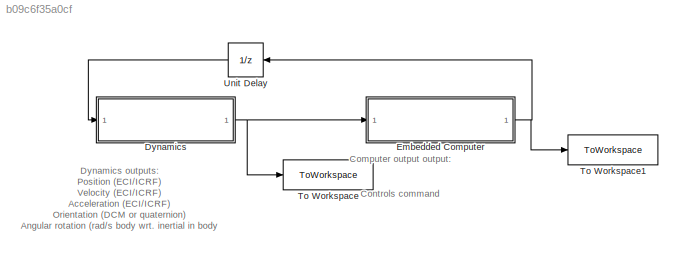
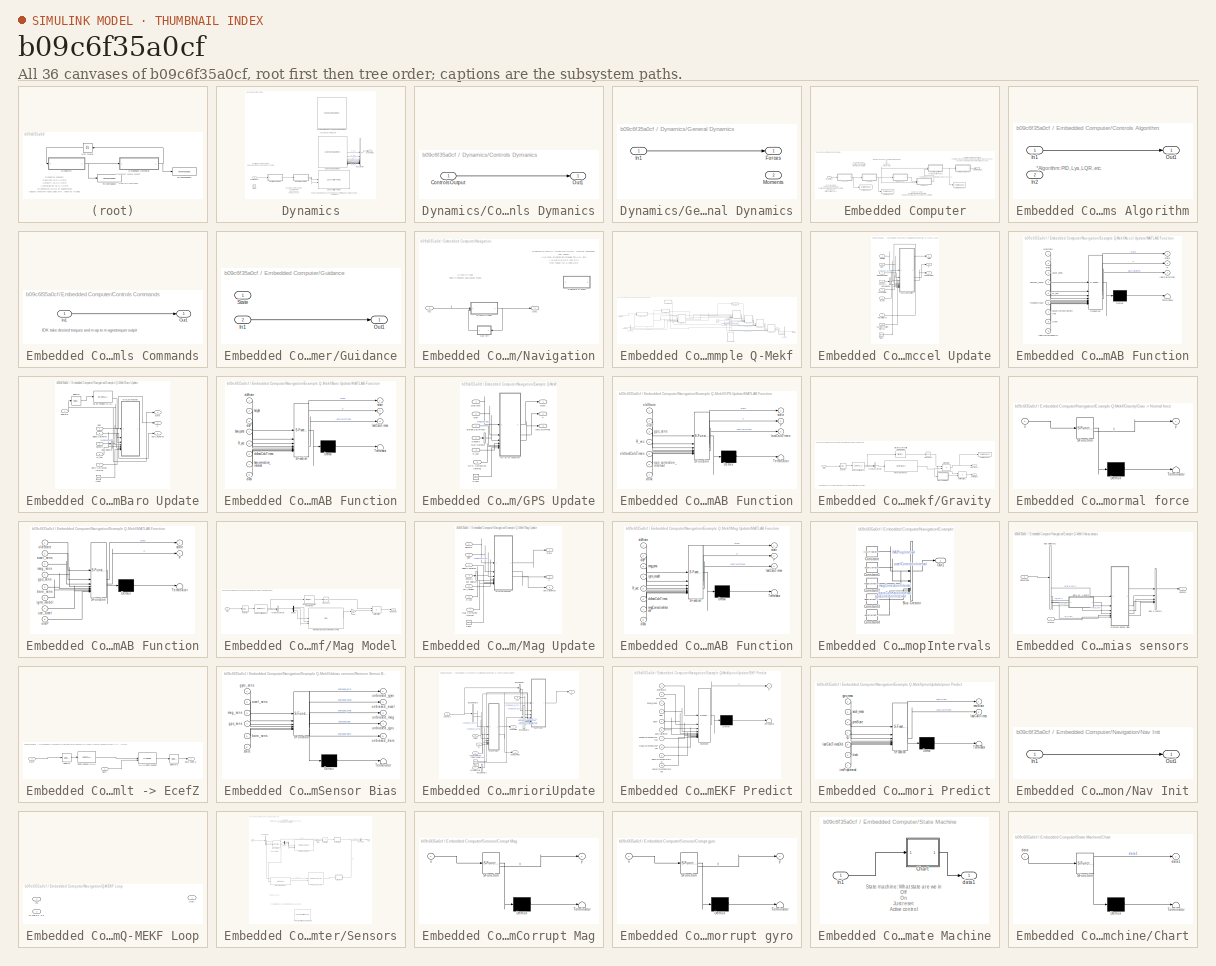
[diagram: thumbnail index - all 36 canvases of the model, root first then tree order]
MODEL slx_b09c6f35a0cf
KIND model
CONFIG AbsTol = auto
CONFIG EnableMultiTasking = off
CONFIG FixedStep = auto
CONFIG MaxStep = auto
CONFIG MinStep = auto
CONFIG RelTol = 1e-3
CONFIG SampleTimeConstraint = Unconstrained
CONFIG SolverName = VariableStepAuto
CONFIG StartTime = 0.0
CONFIG StopTime = 10.0
BLOCK [SubSystem] Dynamics
BLOCK [Reference] Dynamics/6DOF ECEF (Quaternion)  REF=aerolib6dof2/6DOF ECEF (Quaternion)
  SourceBlock = aerolib6dof2/6DOF ECEF (Quaternion)
  SourceType = 6DOF EoM (ECEF)
BLOCK [BusCreator] Dynamics/Bus Creator
  DisplayOption = bar
  InheritFromInputs = on
  Inputs = 12
BLOCK [Clock] Dynamics/Clock
BLOCK [SubSystem] Dynamics/Controls Dymanics
BLOCK [Inport] Dynamics/Controls Dymanics/Controls Output
BLOCK [Outport] Dynamics/Controls Dymanics/Out1
BLOCK [Inport] Dynamics/Controls input
BLOCK [Reference] Dynamics/Custom Variable Mass 6DOF ECEF (Quaternion)  REF=aerolib6dof2/6DOF ECEF (Quaternion)
  LibrarySourceBlock = aerolib6dof2/Custom Variable Mass 6DOF\nECEF (Quaternion)
  SourceBlock = aerolib6dof2/6DOF ECEF (Quaternion)
  SourceType = 6DOF EoM (ECEF)
BLOCK [Outport] Dynamics/Dyanamics
BLOCK [SubSystem] Dynamics/General Dynamics
BLOCK [Outport] Dynamics/General Dynamics/Forces
BLOCK [Inport] Dynamics/General Dynamics/In1
BLOCK [Outport] Dynamics/General Dynamics/Moments
  Port = 2
BLOCK [SpacecraftDynamics] Dynamics/Spacecraft Dynamics
  outputAngAccel = on
  outputTransform = on
BLOCK [SubSystem] Embedded Computer
BLOCK [SubSystem] Embedded Computer/Controls Algorithm
BLOCK [Inport] Embedded Computer/Controls Algorithm/In1
BLOCK [Inport] Embedded Computer/Controls Algorithm/In2
  Port = 2
BLOCK [Outport] Embedded Computer/Controls Algorithm/Out1
BLOCK [SubSystem] Embedded Computer/Controls Commands
BLOCK [Inport] Embedded Computer/Controls Commands/In1
BLOCK [Outport] Embedded Computer/Controls Commands/Out1
BLOCK [Outport] Embedded Computer/Controls Output
BLOCK [Inport] Embedded Computer/Dynamics
BLOCK [SubSystem] Embedded Computer/Guidance
BLOCK [Inport] Embedded Computer/Guidance/In1
  Port = 2
BLOCK [Outport] Embedded Computer/Guidance/Out1
BLOCK [Inport] Embedded Computer/Guidance/State
BLOCK [SubSystem] Embedded Computer/Navigation
BLOCK [SubSystem] Embedded Computer/Navigation/Example Q-Mekf
  Commented = on
BLOCK [SubSystem] Embedded Computer/Navigation/Example Q-Mekf/Accel Update
BLOCK [Inport] Embedded Computer/Navigation/Example Q-Mekf/Accel Update/Accel Correction Interval
  Port = 8
BLOCK [BusSelector] Embedded Computer/Navigation/Example Q-Mekf/Accel Update/Bus Selector
  OutputSignals = unbiased_accel
BLOCK [Clock] Embedded Computer/Navigation/Example Q-Mekf/Accel Update/Clock
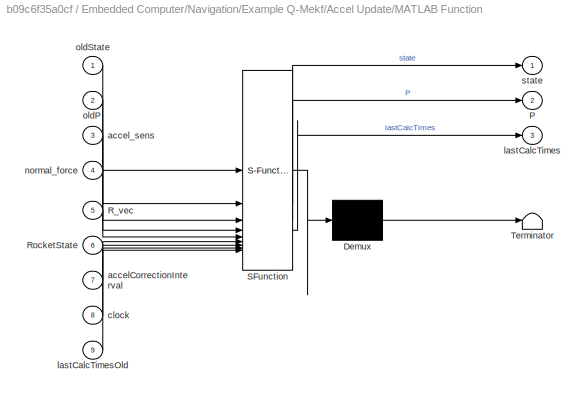
BLOCK [SubSystem] Embedded Computer/Navigation/Example Q-Mekf/Accel Update/MATLAB Function
  ErrorFcn = Stateflow.Translate.translate
  PermitHierarchicalResolution = ExplicitOnly
  SFBlockType = MATLAB Function
  TreatAsAtomicUnit = on
BLOCK [Demux] Embedded Computer/Navigation/Example Q-Mekf/Accel Update/MATLAB Function/ Demux 
  Outputs = 1
BLOCK [S-Function] Embedded Computer/Navigation/Example Q-Mekf/Accel Update/MATLAB Function/ SFunction 
  EnableBusSupport = off
  FunctionName = sf_sfun
  PortCounts = [9 4]
  SFcnIsStateOwnerBlock = off
  SFunctionDeploymentMode = off
  Tag = Stateflow S-Function 52
BLOCK [Terminator] Embedded Computer/Navigation/Example Q-Mekf/Accel Update/MATLAB Function/ Terminator 
BLOCK [Outport] Embedded Computer/Navigation/Example Q-Mekf/Accel Update/MATLAB Function/P
  Port = 2
BLOCK [Inport] Embedded Computer/Navigation/Example Q-Mekf/Accel Update/MATLAB Function/R_vec
  Port = 5
BLOCK [Inport] Embedded Computer/Navigation/Example Q-Mekf/Accel Update/MATLAB Function/RocketState
  Port = 6
BLOCK [Inport] Embedded Computer/Navigation/Example Q-Mekf/Accel Update/MATLAB Function/accelCorrectionInterval
  Port = 7
BLOCK [Inport] Embedded Computer/Navigation/Example Q-Mekf/Accel Update/MATLAB Function/accel_sens
  Port = 3
BLOCK [Inport] Embedded Computer/Navigation/Example Q-Mekf/Accel Update/MATLAB Function/clock
  Port = 8
BLOCK [Outport] Embedded Computer/Navigation/Example Q-Mekf/Accel Update/MATLAB Function/lastCalcTimes
  Port = 3
BLOCK [Inport] Embedded Computer/Navigation/Example Q-Mekf/Accel Update/MATLAB Function/lastCalcTimesOld
  Port = 9
BLOCK [Inport] Embedded Computer/Navigation/Example Q-Mekf/Accel Update/MATLAB Function/normal_force
  Port = 4
BLOCK [Inport] Embedded Computer/Navigation/Example Q-Mekf/Accel Update/MATLAB Function/oldP
  Port = 2
BLOCK [Inport] Embedded Computer/Navigation/Example Q-Mekf/Accel Update/MATLAB Function/oldState
BLOCK [Outport] Embedded Computer/Navigation/Example Q-Mekf/Accel Update/MATLAB Function/state
BLOCK [Inport] Embedded Computer/Navigation/Example Q-Mekf/Accel Update/Normal force
  Port = 7
BLOCK [Outport] Embedded Computer/Navigation/Example Q-Mekf/Accel Update/P
  Port = 2
BLOCK [Inport] Embedded Computer/Navigation/Example Q-Mekf/Accel Update/R_vec
  Port = 6
BLOCK [Inport] Embedded Computer/Navigation/Example Q-Mekf/Accel Update/RocketState
  Port = 5
BLOCK [Inport] Embedded Computer/Navigation/Example Q-Mekf/Accel Update/Sensors
  Port = 4
BLOCK [Outport] Embedded Computer/Navigation/Example Q-Mekf/Accel Update/lastCalcTimes
  Port = 3
BLOCK [Inport] Embedded Computer/Navigation/Example Q-Mekf/Accel Update/oldP
  Port = 2
BLOCK [Inport] Embedded Computer/Navigation/Example Q-Mekf/Accel Update/oldState
BLOCK [Inport] Embedded Computer/Navigation/Example Q-Mekf/Accel Update/oldlastCalcTimes
  Port = 3
BLOCK [Outport] Embedded Computer/Navigation/Example Q-Mekf/Accel Update/state
BLOCK [SubSystem] Embedded Computer/Navigation/Example Q-Mekf/Baro Update
BLOCK [Inport] Embedded Computer/Navigation/Example Q-Mekf/Baro Update/Baro Correction Interval
  Port = 6
BLOCK [BusSelector] Embedded Computer/Navigation/Example Q-Mekf/Baro Update/Bus Selector
  OutputSignals = unbiased_baro
BLOCK [Clock] Embedded Computer/Navigation/Example Q-Mekf/Baro Update/Clock
BLOCK [ECEF2LLA] Embedded Computer/Navigation/Example Q-Mekf/Baro Update/ECEF Position to LLA
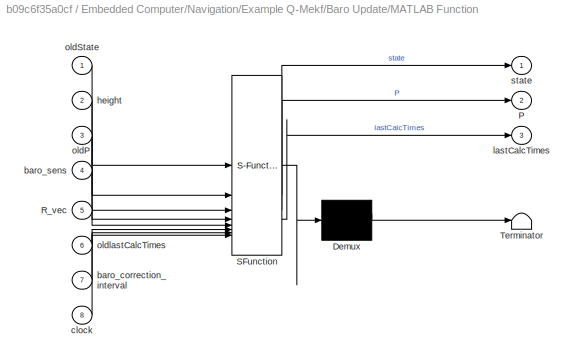
BLOCK [SubSystem] Embedded Computer/Navigation/Example Q-Mekf/Baro Update/MATLAB Function
  Commented = on
  ErrorFcn = Stateflow.Translate.translate
  PermitHierarchicalResolution = ExplicitOnly
  SFBlockType = MATLAB Function
  TreatAsAtomicUnit = on
BLOCK [Demux] Embedded Computer/Navigation/Example Q-Mekf/Baro Update/MATLAB Function/ Demux 
  Outputs = 1
BLOCK [S-Function] Embedded Computer/Navigation/Example Q-Mekf/Baro Update/MATLAB Function/ SFunction 
  EnableBusSupport = off
  FunctionName = sf_sfun
  PortCounts = [8 4]
  SFcnIsStateOwnerBlock = off
  SFunctionDeploymentMode = off
  Tag = Stateflow S-Function 51
BLOCK [Terminator] Embedded Computer/Navigation/Example Q-Mekf/Baro Update/MATLAB Function/ Terminator 
BLOCK [Outport] Embedded Computer/Navigation/Example Q-Mekf/Baro Update/MATLAB Function/P
  Port = 2
BLOCK [Inport] Embedded Computer/Navigation/Example Q-Mekf/Baro Update/MATLAB Function/R_vec
  Port = 5
BLOCK [Inport] Embedded Computer/Navigation/Example Q-Mekf/Baro Update/MATLAB Function/baro_correction_interval
  Port = 7
BLOCK [Inport] Embedded Computer/Navigation/Example Q-Mekf/Baro Update/MATLAB Function/baro_sens
  Port = 4
BLOCK [Inport] Embedded Computer/Navigation/Example Q-Mekf/Baro Update/MATLAB Function/clock
  Port = 8
BLOCK [Inport] Embedded Computer/Navigation/Example Q-Mekf/Baro Update/MATLAB Function/height
  Port = 2
BLOCK [Outport] Embedded Computer/Navigation/Example Q-Mekf/Baro Update/MATLAB Function/lastCalcTimes
  Port = 3
BLOCK [Inport] Embedded Computer/Navigation/Example Q-Mekf/Baro Update/MATLAB Function/oldP
  Port = 3
BLOCK [Inport] Embedded Computer/Navigation/Example Q-Mekf/Baro Update/MATLAB Function/oldState
BLOCK [Inport] Embedded Computer/Navigation/Example Q-Mekf/Baro Update/MATLAB Function/oldlastCalcTimes
  Port = 6
BLOCK [Outport] Embedded Computer/Navigation/Example Q-Mekf/Baro Update/MATLAB Function/state
BLOCK [Outport] Embedded Computer/Navigation/Example Q-Mekf/Baro Update/P
  Port = 2
BLOCK [Inport] Embedded Computer/Navigation/Example Q-Mekf/Baro Update/R_vec
  Port = 5
BLOCK [Selector] Embedded Computer/Navigation/Example Q-Mekf/Baro Update/Selector
  IndexOptions = Index vector (dialog)
  Indices = [8 9 10]
  InputPortWidth = 20
  OutputSizes = 1
BLOCK [Inport] Embedded Computer/Navigation/Example Q-Mekf/Baro Update/Sensors
  Port = 4
BLOCK [Outport] Embedded Computer/Navigation/Example Q-Mekf/Baro Update/lastCalcTimes
  Port = 3
BLOCK [Inport] Embedded Computer/Navigation/Example Q-Mekf/Baro Update/oldP
  Port = 2
BLOCK [Inport] Embedded Computer/Navigation/Example Q-Mekf/Baro Update/oldState
BLOCK [Inport] Embedded Computer/Navigation/Example Q-Mekf/Baro Update/oldlastCalcTimes
  Port = 3
BLOCK [Outport] Embedded Computer/Navigation/Example Q-Mekf/Baro Update/state
BLOCK [BusCreator] Embedded Computer/Navigation/Example Q-Mekf/Bus Creator
  DisplayOption = bar
  InheritFromInputs = on
  Inputs = 3
BLOCK [BusSelector] Embedded Computer/Navigation/Example Q-Mekf/Bus Selector
  OutputSignals = state,P,lastCalcTimes
BLOCK [BusSelector] Embedded Computer/Navigation/Example Q-Mekf/Bus Selector1
  OutputSignals = accelCorrectionInterval,magCorrectionInterval,gpsCorrectionInterval,baroCorrectionInterval
BLOCK [SubSystem] Embedded Computer/Navigation/Example Q-Mekf/GPS Update
BLOCK [BusSelector] Embedded Computer/Navigation/Example Q-Mekf/GPS Update/Bus Selector
  OutputSignals = unbiased_gps
BLOCK [Clock] Embedded Computer/Navigation/Example Q-Mekf/GPS Update/Clock
BLOCK [Inport] Embedded Computer/Navigation/Example Q-Mekf/GPS Update/GPS Correction Interval
  Port = 6
BLOCK [SubSystem] Embedded Computer/Navigation/Example Q-Mekf/GPS Update/MATLAB Function
  ErrorFcn = Stateflow.Translate.translate
  PermitHierarchicalResolution = ExplicitOnly
  SFBlockType = MATLAB Function
  TreatAsAtomicUnit = on
BLOCK [Demux] Embedded Computer/Navigation/Example Q-Mekf/GPS Update/MATLAB Function/ Demux 
  Outputs = 1
BLOCK [S-Function] Embedded Computer/Navigation/Example Q-Mekf/GPS Update/MATLAB Function/ SFunction 
  EnableBusSupport = off
  FunctionName = sf_sfun
  PortCounts = [7 4]
  SFcnIsStateOwnerBlock = off
  SFunctionDeploymentMode = off
  Tag = Stateflow S-Function 38
BLOCK [Terminator] Embedded Computer/Navigation/Example Q-Mekf/GPS Update/MATLAB Function/ Terminator 
BLOCK [Outport] Embedded Computer/Navigation/Example Q-Mekf/GPS Update/MATLAB Function/P
  Port = 2
BLOCK [Inport] Embedded Computer/Navigation/Example Q-Mekf/GPS Update/MATLAB Function/R_vec
  Port = 4
BLOCK [Inport] Embedded Computer/Navigation/Example Q-Mekf/GPS Update/MATLAB Function/clock
  Port = 7
BLOCK [Inport] Embedded Computer/Navigation/Example Q-Mekf/GPS Update/MATLAB Function/gps_correction_interval
  Port = 6
BLOCK [Inport] Embedded Computer/Navigation/Example Q-Mekf/GPS Update/MATLAB Function/gps_sens
  Port = 3
BLOCK [Outport] Embedded Computer/Navigation/Example Q-Mekf/GPS Update/MATLAB Function/lastCalcTimes
  Port = 3
BLOCK [Inport] Embedded Computer/Navigation/Example Q-Mekf/GPS Update/MATLAB Function/oldP
  Port = 2
BLOCK [Inport] Embedded Computer/Navigation/Example Q-Mekf/GPS Update/MATLAB Function/oldState
BLOCK [Inport] Embedded Computer/Navigation/Example Q-Mekf/GPS Update/MATLAB Function/oldlastCalcTimes
  Port = 5
BLOCK [Outport] Embedded Computer/Navigation/Example Q-Mekf/GPS Update/MATLAB Function/state
BLOCK [Outport] Embedded Computer/Navigation/Example Q-Mekf/GPS Update/P
  Port = 2
BLOCK [Inport] Embedded Computer/Navigation/Example Q-Mekf/GPS Update/R_vec
  Port = 5
BLOCK [Inport] Embedded Computer/Navigation/Example Q-Mekf/GPS Update/Sensors
  Port = 4
BLOCK [Outport] Embedded Computer/Navigation/Example Q-Mekf/GPS Update/lastCalcTimes
  Port = 3
BLOCK [Inport] Embedded Computer/Navigation/Example Q-Mekf/GPS Update/oldP
  Port = 2
BLOCK [Inport] Embedded Computer/Navigation/Example Q-Mekf/GPS Update/oldState
BLOCK [Inport] Embedded Computer/Navigation/Example Q-Mekf/GPS Update/oldlastCalcTimes
  Port = 3
BLOCK [Outport] Embedded Computer/Navigation/Example Q-Mekf/GPS Update/state
BLOCK [SubSystem] Embedded Computer/Navigation/Example Q-Mekf/Gravity
BLOCK [Reference] Embedded Computer/Navigation/Example Q-Mekf/Gravity/Direction Cosine Matrix ECEF to NED  REF=aerolibtransform2/Direction Cosine Matrix
ECEF to NED
  SourceBlock = aerolibtransform2/Direction Cosine Matrix\nECEF to NED
  SourceType = DCM ECEF to NED
BLOCK [ECEF2LLA] Embedded Computer/Navigation/Example Q-Mekf/Gravity/ECEF Position to LLA
BLOCK [SubSystem] Embedded Computer/Navigation/Example Q-Mekf/Gravity/Grav -> Normal force
  ErrorFcn = Stateflow.Translate.translate
  PermitHierarchicalResolution = ExplicitOnly
  SFBlockType = MATLAB Function
  TreatAsAtomicUnit = on
BLOCK [Demux] Embedded Computer/Navigation/Example Q-Mekf/Gravity/Grav -> Normal force/ Demux 
  Outputs = 1
BLOCK [S-Function] Embedded Computer/Navigation/Example Q-Mekf/Gravity/Grav -> Normal force/ SFunction 
  EnableBusSupport = off
  FunctionName = sf_sfun
  PortCounts = [1 2]
  SFcnIsStateOwnerBlock = off
  SFunctionDeploymentMode = off
  Tag = Stateflow S-Function 53
BLOCK [Terminator] Embedded Computer/Navigation/Example Q-Mekf/Gravity/Grav -> Normal force/ Terminator 
BLOCK [Inport] Embedded Computer/Navigation/Example Q-Mekf/Gravity/Grav -> Normal force/u
BLOCK [Outport] Embedded Computer/Navigation/Example Q-Mekf/Gravity/Grav -> Normal force/y
BLOCK [Outport] Embedded Computer/Navigation/Example Q-Mekf/Gravity/Grav model
BLOCK [Product] Embedded Computer/Navigation/Example Q-Mekf/Gravity/Matrix Multiply
  Multiplication = Matrix(*)
BLOCK [Product] Embedded Computer/Navigation/Example Q-Mekf/Gravity/Matrix Multiply1
  Multiplication = Matrix(*)
BLOCK [Outport] Embedded Computer/Navigation/Example Q-Mekf/Gravity/Normal force
  Port = 2
BLOCK [Selector] Embedded Computer/Navigation/Example Q-Mekf/Gravity/Selector
  IndexOptions = Index vector (dialog)
  Indices = [8 9 10]
  InputPortWidth = 20
  OutputSizes = 1
BLOCK [ToWorkspace] Embedded Computer/Navigation/Example Q-Mekf/Gravity/To Workspace
  FixptAsFi = on
  MaxDataPoints = inf
  SampleTime = -1
  SaveFormat = Timeseries
  VariableName = abhay_g
BLOCK [Math] Embedded Computer/Navigation/Example Q-Mekf/Gravity/Transpose
  Operator = transpose
BLOCK [Concatenate] Embedded Computer/Navigation/Example Q-Mekf/Gravity/Vector Concatenate
BLOCK [GravityWGS84] Embedded Computer/Navigation/Example Q-Mekf/Gravity/WGS84 Gravity Model  
BLOCK [Inport] Embedded Computer/Navigation/Example Q-Mekf/Gravity/state
BLOCK [SubSystem] Embedded Computer/Navigation/Example Q-Mekf/MATLAB Function
  Commented = on
  ErrorFcn = Stateflow.Translate.translate
  PermitHierarchicalResolution = ExplicitOnly
  SFBlockType = MATLAB Function
  TreatAsAtomicUnit = on
BLOCK [Demux] Embedded Computer/Navigation/Example Q-Mekf/MATLAB Function/ Demux 
  Outputs = 1
BLOCK [S-Function] Embedded Computer/Navigation/Example Q-Mekf/MATLAB Function/ SFunction 
  EnableBusSupport = off
  FunctionName = sf_sfun
  PortCounts = [8 3]
  SFcnIsStateOwnerBlock = off
  SFunctionDeploymentMode = off
  Tag = Stateflow S-Function 35
BLOCK [Terminator] Embedded Computer/Navigation/Example Q-Mekf/MATLAB Function/ Terminator 
BLOCK [Outport] Embedded Computer/Navigation/Example Q-Mekf/MATLAB Function/P
  Port = 2
BLOCK [Inport] Embedded Computer/Navigation/Example Q-Mekf/MATLAB Function/accel_sens
  Port = 2
BLOCK [Inport] Embedded Computer/Navigation/Example Q-Mekf/MATLAB Function/baro_sens
  Port = 5
BLOCK [Inport] Embedded Computer/Navigation/Example Q-Mekf/MATLAB Function/gps_sens
  Port = 4
BLOCK [Inport] Embedded Computer/Navigation/Example Q-Mekf/MATLAB Function/igrm_model
  Port = 6
BLOCK [Inport] Embedded Computer/Navigation/Example Q-Mekf/MATLAB Function/mag_sens
  Port = 3
BLOCK [Inport] Embedded Computer/Navigation/Example Q-Mekf/MATLAB Function/oldP
  Port = 8
BLOCK [Inport] Embedded Computer/Navigation/Example Q-Mekf/MATLAB Function/oldState
BLOCK [Outport] Embedded Computer/Navigation/Example Q-Mekf/MATLAB Function/state
BLOCK [Inport] Embedded Computer/Navigation/Example Q-Mekf/MATLAB Function/use_accel
  Port = 7
BLOCK [SubSystem] Embedded Computer/Navigation/Example Q-Mekf/Mag Model
BLOCK [Demux] Embedded Computer/Navigation/Example Q-Mekf/Mag Model/Demux
  Outputs = 3
BLOCK [Reference] Embedded Computer/Navigation/Example Q-Mekf/Mag Model/Direction Cosine Matrix ECEF to NED  REF=aerolibtransform2/Direction Cosine Matrix
ECEF to NED
  SourceBlock = aerolibtransform2/Direction Cosine Matrix\nECEF to NED
  SourceType = DCM ECEF to NED
BLOCK [ECEF2LLA] Embedded Computer/Navigation/Example Q-Mekf/Mag Model/ECEF Position to LLA
BLOCK [IGRF] Embedded Computer/Navigation/Example Q-Mekf/Mag Model/International Geomagnetic Reference Field
  AttributesFormatString = %<generation>
  day = 1
  month = January
  time_in = off
BLOCK [Outport] Embedded Computer/Navigation/Example Q-Mekf/Mag Model/Mag model
BLOCK [Product] Embedded Computer/Navigation/Example Q-Mekf/Mag Model/Matrix Multiply
  Multiplication = Matrix(*)
BLOCK [Selector] Embedded Computer/Navigation/Example Q-Mekf/Mag Model/Selector
  IndexOptions = Index vector (dialog)
  Indices = [8 9 10]
  InputPortWidth = 20
  OutputSizes = 1
BLOCK [Gain] Embedded Computer/Navigation/Example Q-Mekf/Mag Model/To uT
  Gain = 1.0 / 1000
BLOCK [Math] Embedded Computer/Navigation/Example Q-Mekf/Mag Model/Transpose
  Operator = transpose
BLOCK [Concatenate] Embedded Computer/Navigation/Example Q-Mekf/Mag Model/Vector Concatenate
BLOCK [Inport] Embedded Computer/Navigation/Example Q-Mekf/Mag Model/state
BLOCK [SubSystem] Embedded Computer/Navigation/Example Q-Mekf/Mag Update
BLOCK [BusSelector] Embedded Computer/Navigation/Example Q-Mekf/Mag Update/Bus Selector
  OutputSignals = unbiased_mag
BLOCK [Clock] Embedded Computer/Navigation/Example Q-Mekf/Mag Update/Clock
BLOCK [SubSystem] Embedded Computer/Navigation/Example Q-Mekf/Mag Update/MATLAB Function
  ErrorFcn = Stateflow.Translate.translate
  PermitHierarchicalResolution = ExplicitOnly
  SFBlockType = MATLAB Function
  TreatAsAtomicUnit = on
BLOCK [Demux] Embedded Computer/Navigation/Example Q-Mekf/Mag Update/MATLAB Function/ Demux 
  Outputs = 1
BLOCK [S-Function] Embedded Computer/Navigation/Example Q-Mekf/Mag Update/MATLAB Function/ SFunction 
  EnableBusSupport = off
  FunctionName = sf_sfun
  PortCounts = [8 4]
  SFcnIsStateOwnerBlock = off
  SFunctionDeploymentMode = off
  Tag = Stateflow S-Function 37
BLOCK [Terminator] Embedded Computer/Navigation/Example Q-Mekf/Mag Update/MATLAB Function/ Terminator 
BLOCK [Outport] Embedded Computer/Navigation/Example Q-Mekf/Mag Update/MATLAB Function/P
  Port = 2
BLOCK [Inport] Embedded Computer/Navigation/Example Q-Mekf/Mag Update/MATLAB Function/R_vec
  Port = 5
BLOCK [Inport] Embedded Computer/Navigation/Example Q-Mekf/Mag Update/MATLAB Function/clock
  Port = 8
BLOCK [Inport] Embedded Computer/Navigation/Example Q-Mekf/Mag Update/MATLAB Function/igrm_model
  Port = 4
BLOCK [Outport] Embedded Computer/Navigation/Example Q-Mekf/Mag Update/MATLAB Function/lastCalcTimes
  Port = 3
BLOCK [Inport] Embedded Computer/Navigation/Example Q-Mekf/Mag Update/MATLAB Function/magCorrectionInterval
  Port = 7
BLOCK [Inport] Embedded Computer/Navigation/Example Q-Mekf/Mag Update/MATLAB Function/mag_sens
  Port = 3
BLOCK [Inport] Embedded Computer/Navigation/Example Q-Mekf/Mag Update/MATLAB Function/oldP
  Port = 2
BLOCK [Inport] Embedded Computer/Navigation/Example Q-Mekf/Mag Update/MATLAB Function/oldState
BLOCK [Inport] Embedded Computer/Navigation/Example Q-Mekf/Mag Update/MATLAB Function/oldlastCalcTimes
  Port = 6
BLOCK [Outport] Embedded Computer/Navigation/Example Q-Mekf/Mag Update/MATLAB Function/state
BLOCK [Inport] Embedded Computer/Navigation/Example Q-Mekf/Mag Update/Mag Correction Interval
  Port = 7
BLOCK [Outport] Embedded Computer/Navigation/Example Q-Mekf/Mag Update/P
  Port = 2
BLOCK [Inport] Embedded Computer/Navigation/Example Q-Mekf/Mag Update/R_vec
  Port = 6
BLOCK [Inport] Embedded Computer/Navigation/Example Q-Mekf/Mag Update/Sensors
  Port = 4
BLOCK [Inport] Embedded Computer/Navigation/Example Q-Mekf/Mag Update/igrf_reading
  Port = 5
BLOCK [Outport] Embedded Computer/Navigation/Example Q-Mekf/Mag Update/lastCalcTimes
  Port = 3
BLOCK [Inport] Embedded Computer/Navigation/Example Q-Mekf/Mag Update/oldP
  Port = 2
BLOCK [Inport] Embedded Computer/Navigation/Example Q-Mekf/Mag Update/oldState
BLOCK [Inport] Embedded Computer/Navigation/Example Q-Mekf/Mag Update/oldlastCalcTimes
  Port = 3
BLOCK [Outport] Embedded Computer/Navigation/Example Q-Mekf/Mag Update/state
BLOCK [Outport] Embedded Computer/Navigation/Example Q-Mekf/NavBus
BLOCK [Inport] Embedded Computer/Navigation/Example Q-Mekf/NavBusK-1
  Port = 2
BLOCK [SubSystem] Embedded Computer/Navigation/Example Q-Mekf/PropIntervals
BLOCK [BusCreator] Embedded Computer/Navigation/Example Q-Mekf/PropIntervals/Bus Creator
  DisplayOption = bar
  InheritFromInputs = on
  Inputs = 5
BLOCK [Constant] Embedded Computer/Navigation/Example Q-Mekf/PropIntervals/Constant
  Value = IMUPropInterval
BLOCK [Constant] Embedded Computer/Navigation/Example Q-Mekf/PropIntervals/Constant1
  Value = accelCorrectionInterval
BLOCK [Constant] Embedded Computer/Navigation/Example Q-Mekf/PropIntervals/Constant2
  Value = magCorrectionInterval
BLOCK [Constant] Embedded Computer/Navigation/Example Q-Mekf/PropIntervals/Constant3
  Value = gpsCorrectionInterval
BLOCK [Constant] Embedded Computer/Navigation/Example Q-Mekf/PropIntervals/Constant4
  Value = baroCorrectionInterval
BLOCK [Outport] Embedded Computer/Navigation/Example Q-Mekf/PropIntervals/Out1
BLOCK [Constant] Embedded Computer/Navigation/Example Q-Mekf/R_vec
  Value = R_vec
BLOCK [Inport] Embedded Computer/Navigation/Example Q-Mekf/RocketState
  Port = 3
BLOCK [Inport] Embedded Computer/Navigation/Example Q-Mekf/SensorBus
BLOCK [SubSystem] Embedded Computer/Navigation/Example Q-Mekf/Unbias sensors
BLOCK [Inport] Embedded Computer/Navigation/Example Q-Mekf/Unbias sensors/<state>
  Port = 2
BLOCK [SubSystem] Embedded Computer/Navigation/Example Q-Mekf/Unbias sensors/Baro Alt -> EcefZ
  Commented = on
BLOCK [Inport] Embedded Computer/Navigation/Example Q-Mekf/Unbias sensors/Baro Alt -> EcefZ/Baro
BLOCK [Outport] Embedded Computer/Navigation/Example Q-Mekf/Unbias sensors/Baro Alt -> EcefZ/Baro ECEF_Z
BLOCK [ECEF2LLA] Embedded Computer/Navigation/Example Q-Mekf/Unbias sensors/Baro Alt -> EcefZ/ECEF Position to LLA
BLOCK [LLA2ECEF] Embedded Computer/Navigation/Example Q-Mekf/Unbias sensors/Baro Alt -> EcefZ/LLA to ECEF Position
BLOCK [Selector] Embedded Computer/Navigation/Example Q-Mekf/Unbias sensors/Baro Alt -> EcefZ/Selector
  IndexOptions = Index vector (dialog)
  Indices = [8 9 10]
  InputPortWidth = 20
  OutputSizes = 1
BLOCK [Selector] Embedded Computer/Navigation/Example Q-Mekf/Unbias sensors/Baro Alt -> EcefZ/Selector1
  IndexOptions = Index vector (dialog)
  Indices = [3]
  InputPortWidth = 3
  OutputSizes = 1
BLOCK [Inport] Embedded Computer/Navigation/Example Q-Mekf/Unbias sensors/Baro Alt -> EcefZ/state
  Port = 2
BLOCK [BusCreator] Embedded Computer/Navigation/Example Q-Mekf/Unbias sensors/Bus Creator1
  DisplayOption = bar
  InheritFromInputs = on
  Inputs = 5
BLOCK [BusSelector] Embedded Computer/Navigation/Example Q-Mekf/Unbias sensors/Bus Selector1
  OutputSignals = ICM20948.w_ib_B_true,ICM20948.w_ib_B_corr,ICM20948.sf_B_true,ICM20948.sf_B_corr,MMC5983.B_true,MMC5983.B_corr,MAX10S.P_E,MAX10S.P_E_corr,LPS22.P_true,LPS22.P_corr
BLOCK [SubSystem] Embedded Computer/Navigation/Example Q-Mekf/Unbias sensors/Remove Sensor Bias
  ErrorFcn = Stateflow.Translate.translate
  PermitHierarchicalResolution = ExplicitOnly
  SFBlockType = MATLAB Function
  TreatAsAtomicUnit = on
BLOCK [Demux] Embedded Computer/Navigation/Example Q-Mekf/Unbias sensors/Remove Sensor Bias/ Demux 
  Outputs = 1
BLOCK [S-Function] Embedded Computer/Navigation/Example Q-Mekf/Unbias sensors/Remove Sensor Bias/ SFunction 
  EnableBusSupport = off
  FunctionName = sf_sfun
  PortCounts = [6 6]
  SFcnIsStateOwnerBlock = off
  SFunctionDeploymentMode = off
  Tag = Stateflow S-Function 32
BLOCK [Terminator] Embedded Computer/Navigation/Example Q-Mekf/Unbias sensors/Remove Sensor Bias/ Terminator 
BLOCK [Inport] Embedded Computer/Navigation/Example Q-Mekf/Unbias sensors/Remove Sensor Bias/accel_sens
  Port = 2
BLOCK [Inport] Embedded Computer/Navigation/Example Q-Mekf/Unbias sensors/Remove Sensor Bias/baro_sens
  Port = 5
BLOCK [Inport] Embedded Computer/Navigation/Example Q-Mekf/Unbias sensors/Remove Sensor Bias/gps_sens
  Port = 4
BLOCK [Inport] Embedded Computer/Navigation/Example Q-Mekf/Unbias sensors/Remove Sensor Bias/gyro_sens
BLOCK [Inport] Embedded Computer/Navigation/Example Q-Mekf/Unbias sensors/Remove Sensor Bias/mag_sens
  Port = 3
BLOCK [Inport] Embedded Computer/Navigation/Example Q-Mekf/Unbias sensors/Remove Sensor Bias/state
  Port = 6
BLOCK [Outport] Embedded Computer/Navigation/Example Q-Mekf/Unbias sensors/Remove Sensor Bias/unbiased_accel
  Port = 2
BLOCK [Outport] Embedded Computer/Navigation/Example Q-Mekf/Unbias sensors/Remove Sensor Bias/unbiased_baro
  Port = 5
BLOCK [Outport] Embedded Computer/Navigation/Example Q-Mekf/Unbias sensors/Remove Sensor Bias/unbiased_gps
  Port = 4
BLOCK [Outport] Embedded Computer/Navigation/Example Q-Mekf/Unbias sensors/Remove Sensor Bias/unbiased_gyro
BLOCK [Outport] Embedded Computer/Navigation/Example Q-Mekf/Unbias sensors/Remove Sensor Bias/unbiased_mag
  Port = 3
BLOCK [Inport] Embedded Computer/Navigation/Example Q-Mekf/Unbias sensors/SensorBus
BLOCK [Outport] Embedded Computer/Navigation/Example Q-Mekf/Unbias sensors/Sensors
BLOCK [SubSystem] Embedded Computer/Navigation/Example Q-Mekf/prioriUpdate
BLOCK [Inport] Embedded Computer/Navigation/Example Q-Mekf/prioriUpdate/<P>
  Port = 3
BLOCK [Inport] Embedded Computer/Navigation/Example Q-Mekf/prioriUpdate/<state>
  Port = 2
BLOCK [BusSelector] Embedded Computer/Navigation/Example Q-Mekf/prioriUpdate/Bus Selector
  OutputSignals = unbiased_gyro,unbiased_accel
BLOCK [BusSelector] Embedded Computer/Navigation/Example Q-Mekf/prioriUpdate/Bus Selector1
  OutputSignals = IMUPropInterval
BLOCK [BusSelector] Embedded Computer/Navigation/Example Q-Mekf/prioriUpdate/Bus Selector2
  OutputSignals = unbiased_gyro,unbiased_accel
BLOCK [BusSelector] Embedded Computer/Navigation/Example Q-Mekf/prioriUpdate/Bus Selector3
  OutputSignals = accelCorrectionInterval,magCorrectionInterval,gpsCorrectionInterval,baroCorrectionInterval
BLOCK [Clock] Embedded Computer/Navigation/Example Q-Mekf/prioriUpdate/Clock
BLOCK [SubSystem] Embedded Computer/Navigation/Example Q-Mekf/prioriUpdate/EKF Predict
  ErrorFcn = Stateflow.Translate.translate
  PermitHierarchicalResolution = ExplicitOnly
  SFBlockType = MATLAB Function
  TreatAsAtomicUnit = on
BLOCK [Demux] Embedded Computer/Navigation/Example Q-Mekf/prioriUpdate/EKF Predict/ Demux 
  Outputs = 1
BLOCK [S-Function] Embedded Computer/Navigation/Example Q-Mekf/prioriUpdate/EKF Predict/ SFunction 
  EnableBusSupport = off
  FunctionName = sf_sfun
  PortCounts = [10 2]
  SFcnIsStateOwnerBlock = off
  SFunctionDeploymentMode = off
  Tag = Stateflow S-Function 34
BLOCK [Terminator] Embedded Computer/Navigation/Example Q-Mekf/prioriUpdate/EKF Predict/ Terminator 
BLOCK [Outport] Embedded Computer/Navigation/Example Q-Mekf/prioriUpdate/EKF Predict/P
BLOCK [Inport] Embedded Computer/Navigation/Example Q-Mekf/prioriUpdate/EKF Predict/accelCorrectionInterval
  Port = 7
BLOCK [Inport] Embedded Computer/Navigation/Example Q-Mekf/prioriUpdate/EKF Predict/accel_meas
  Port = 3
BLOCK [Inport] Embedded Computer/Navigation/Example Q-Mekf/prioriUpdate/EKF Predict/baroCorrectionInterval
  Port = 10
BLOCK [Inport] Embedded Computer/Navigation/Example Q-Mekf/prioriUpdate/EKF Predict/clock
  Port = 5
BLOCK [Inport] Embedded Computer/Navigation/Example Q-Mekf/prioriUpdate/EKF Predict/gpsCorrectionInterval
  Port = 9
BLOCK [Inport] Embedded Computer/Navigation/Example Q-Mekf/prioriUpdate/EKF Predict/gyro_meas
  Port = 2
BLOCK [Inport] Embedded Computer/Navigation/Example Q-Mekf/prioriUpdate/EKF Predict/lastCalcTimes
  Port = 6
BLOCK [Inport] Embedded Computer/Navigation/Example Q-Mekf/prioriUpdate/EKF Predict/magCorrectionInterval
  Port = 8
BLOCK [Inport] Embedded Computer/Navigation/Example Q-Mekf/prioriUpdate/EKF Predict/oldP
  Port = 4
BLOCK [Inport] Embedded Computer/Navigation/Example Q-Mekf/prioriUpdate/EKF Predict/prioriState
BLOCK [Outport] Embedded Computer/Navigation/Example Q-Mekf/prioriUpdate/P
  Port = 2
BLOCK [Inport] Embedded Computer/Navigation/Example Q-Mekf/prioriUpdate/Sensors
BLOCK [Inport] Embedded Computer/Navigation/Example Q-Mekf/prioriUpdate/g_i
  Port = 4
BLOCK [Outport] Embedded Computer/Navigation/Example Q-Mekf/prioriUpdate/lastCalcTimes
  Port = 3
BLOCK [Inport] Embedded Computer/Navigation/Example Q-Mekf/prioriUpdate/lastCalcTimesOld
  Port = 5
BLOCK [SubSystem] Embedded Computer/Navigation/Example Q-Mekf/prioriUpdate/priori Predict
  ErrorFcn = Stateflow.Translate.translate
  PermitHierarchicalResolution = ExplicitOnly
  SFBlockType = MATLAB Function
  TreatAsAtomicUnit = on
BLOCK [Demux] Embedded Computer/Navigation/Example Q-Mekf/prioriUpdate/priori Predict/ Demux 
  Outputs = 1
BLOCK [S-Function] Embedded Computer/Navigation/Example Q-Mekf/prioriUpdate/priori Predict/ SFunction 
  EnableBusSupport = off
  FunctionName = sf_sfun
  PortCounts = [7 3]
  SFcnIsStateOwnerBlock = off
  SFunctionDeploymentMode = off
  Tag = Stateflow S-Function 33
BLOCK [Terminator] Embedded Computer/Navigation/Example Q-Mekf/prioriUpdate/priori Predict/ Terminator 
BLOCK [Inport] Embedded Computer/Navigation/Example Q-Mekf/prioriUpdate/priori Predict/accel_meas
  Port = 2
BLOCK [Inport] Embedded Computer/Navigation/Example Q-Mekf/prioriUpdate/priori Predict/clock
  Port = 6
BLOCK [Inport] Embedded Computer/Navigation/Example Q-Mekf/prioriUpdate/priori Predict/g_i
  Port = 4
BLOCK [Inport] Embedded Computer/Navigation/Example Q-Mekf/prioriUpdate/priori Predict/gyro_meas
BLOCK [Inport] Embedded Computer/Navigation/Example Q-Mekf/prioriUpdate/priori Predict/imuPropInterval
  Port = 7
BLOCK [Outport] Embedded Computer/Navigation/Example Q-Mekf/prioriUpdate/priori Predict/lastCalcTimes
  Port = 2
BLOCK [Inport] Embedded Computer/Navigation/Example Q-Mekf/prioriUpdate/priori Predict/lastCalcTimesOld
  Port = 5
BLOCK [Outport] Embedded Computer/Navigation/Example Q-Mekf/prioriUpdate/priori Predict/newState
BLOCK [Inport] Embedded Computer/Navigation/Example Q-Mekf/prioriUpdate/priori Predict/prevState
  Port = 3
BLOCK [Outport] Embedded Computer/Navigation/Example Q-Mekf/prioriUpdate/prioriState
BLOCK [Inport] Embedded Computer/Navigation/Example Q-Mekf/prioriUpdate/propIntervals
  Port = 6
BLOCK [Inport] Embedded Computer/Navigation/In1
BLOCK [SubSystem] Embedded Computer/Navigation/Nav Init
BLOCK [Inport] Embedded Computer/Navigation/Nav Init/In1
BLOCK [Outport] Embedded Computer/Navigation/Nav Init/Out1
BLOCK [Outport] Embedded Computer/Navigation/Out1
BLOCK [SubSystem] Embedded Computer/Navigation/Q-MEKF Loop
BLOCK [Inport] Embedded Computer/Navigation/Q-MEKF Loop/In1
BLOCK [Outport] Embedded Computer/Navigation/Q-MEKF Loop/Out1
BLOCK [Inport] Embedded Computer/Navigation/Q-MEKF Loop/Q-MEKF k-1
  Port = 2
BLOCK [SubSystem] Embedded Computer/Sensors
BLOCK [BusCreator] Embedded Computer/Sensors/Bus Creator
  DisplayOption = bar
  InheritFromInputs = on
  Inputs = 2
BLOCK [BusSelector] Embedded Computer/Sensors/Bus Selector
  OutputSignals = x_eci,R_IB,R_BT,w_ib_b
BLOCK [SubSystem] Embedded Computer/Sensors/Corrupt Mag
  ErrorFcn = Stateflow.Translate.translate
  PermitHierarchicalResolution = ExplicitOnly
  SFBlockType = MATLAB Function
  TreatAsAtomicUnit = on
BLOCK [Demux] Embedded Computer/Sensors/Corrupt Mag/ Demux 
  Outputs = 1
BLOCK [S-Function] Embedded Computer/Sensors/Corrupt Mag/ SFunction 
  EnableBusSupport = off
  FunctionName = sf_sfun
  PortCounts = [1 2]
  SFcnIsStateOwnerBlock = off
  SFunctionDeploymentMode = off
  Tag = Stateflow S-Function 2
BLOCK [Terminator] Embedded Computer/Sensors/Corrupt Mag/ Terminator 
BLOCK [Inport] Embedded Computer/Sensors/Corrupt Mag/u
BLOCK [Outport] Embedded Computer/Sensors/Corrupt Mag/y
BLOCK [SubSystem] Embedded Computer/Sensors/Corrupt gyro
  ErrorFcn = Stateflow.Translate.translate
  PermitHierarchicalResolution = ExplicitOnly
  SFBlockType = MATLAB Function
  TreatAsAtomicUnit = on
BLOCK [Demux] Embedded Computer/Sensors/Corrupt gyro/ Demux 
  Outputs = 1
BLOCK [S-Function] Embedded Computer/Sensors/Corrupt gyro/ SFunction 
  EnableBusSupport = off
  FunctionName = sf_sfun
  PortCounts = [1 2]
  SFcnIsStateOwnerBlock = off
  SFunctionDeploymentMode = off
  Tag = Stateflow S-Function 1
BLOCK [Terminator] Embedded Computer/Sensors/Corrupt gyro/ Terminator 
BLOCK [Inport] Embedded Computer/Sensors/Corrupt gyro/u
BLOCK [Outport] Embedded Computer/Sensors/Corrupt gyro/y
BLOCK [Demux] Embedded Computer/Sensors/Demux
  Outputs = 3
BLOCK [Reference] Embedded Computer/Sensors/ECI Position to LLA  REF=aerolibtransform2/ECI Position to LLA
  AttributesFormatString = %<red>
  SourceBlock = aerolibtransform2/ECI Position to LLA
  SourceType = ECItoLLA
BLOCK [Gain] Embedded Computer/Sensors/Gain
  Gain = 1/1000
BLOCK [Inport] Embedded Computer/Sensors/In1
BLOCK [Product] Embedded Computer/Sensors/Matrix Multiply
  Multiplication = Matrix(*)
BLOCK [Outport] Embedded Computer/Sensors/Out1
BLOCK [Reference] Embedded Computer/Sensors/Three-axis Gyroscope  REF=aerolibnav/Three-axis Gyroscope
  SourceBlock = aerolibnav/Three-axis Gyroscope
  SourceType = Three-axis Gyroscope
BLOCK [Reference] Embedded Computer/Sensors/Three-axis Inertial Measurement Unit1  REF=aerolibnav/Three-axis Inertial
Measurement Unit
  Commented = on
  SourceBlock = aerolibnav/Three-axis Inertial\nMeasurement Unit
  SourceType = Three-axis Inertial Measurement Unit
BLOCK [GravityWGS84] Embedded Computer/Sensors/WGS84 Gravity Model  
BLOCK [Reference] Embedded Computer/Sensors/World Magnetic Model  REF=aerolibgravity2/World Magnetic Model
  AttributesFormatString = %<model>
  SourceBlock = aerolibgravity2/World Magnetic Model
  SourceType = WorldMagneticModel
BLOCK [SubSystem] Embedded Computer/State Machine
BLOCK [SubSystem] Embedded Computer/State Machine/Chart
  ErrorFcn = Stateflow.Translate.translate
  PermitHierarchicalResolution = ExplicitOnly
  SFBlockType = Chart
  TreatAsAtomicUnit = on
BLOCK [Demux] Embedded Computer/State Machine/Chart/ Demux 
  Outputs = 1
BLOCK [S-Function] Embedded Computer/State Machine/Chart/ SFunction 
  EnableBusSupport = off
  FunctionName = sf_sfun
  PortCounts = [1 2]
  SFcnIsStateOwnerBlock = off
  SFunctionDeploymentMode = off
  Tag = Stateflow S-Function 3
BLOCK [Terminator] Embedded Computer/State Machine/Chart/ Terminator 
BLOCK [Inport] Embedded Computer/State Machine/Chart/data
BLOCK [Outport] Embedded Computer/State Machine/Chart/data1
BLOCK [Inport] Embedded Computer/State Machine/In1
BLOCK [Outport] Embedded Computer/State Machine/data1
BLOCK [ToWorkspace] Embedded Computer/To Workspace
  FixptAsFi = on
  MaxDataPoints = inf
  SampleTime = -1
  SaveFormat = Timeseries
  VariableName = sensors
BLOCK [ToWorkspace] Embedded Computer/To Workspace1
  FixptAsFi = on
  MaxDataPoints = inf
  SampleTime = -1
  SaveFormat = Timeseries
  VariableName = navigation
BLOCK [ToWorkspace] Embedded Computer/To Workspace2
  FixptAsFi = on
  MaxDataPoints = inf
  SampleTime = -1
  SaveFormat = Timeseries
  VariableName = controls_algorithm
BLOCK [ToWorkspace] To Workspace
  FixptAsFi = on
  MaxDataPoints = inf
  SampleTime = -1
  SaveFormat = Timeseries
  VariableName = dynamics
BLOCK [ToWorkspace] To Workspace1
  FixptAsFi = on
  MaxDataPoints = inf
  SampleTime = -1
  SaveFormat = Timeseries
  VariableName = controls_output
BLOCK [UnitDelay] Unit Delay
  HasFrameUpgradeWarning = on
  SampleTime = -1
ANNOTATION (root): Computer output output: Controls command
ANNOTATION (root): Dynamics outputs: Position (ECI/ICRF) Velocity (ECI/ICRF) Acceleration (ECI/ICRF) Orientation (DCM or quaternion) Angular rotation (rad/s body wrt. inertial in body Angular accel (rad/s^2 "")
ANNOTATION Dynamics: Controls dynamics output: IDK whatever that changes in the dynamics
ANNOTATION Dynamics: General dynamics output: Location stuff: Forces on sat Torques on sat
ANNOTATION Dynamics: Example block for this stuff
ANNOTATION Dynamics: This block integrates those Forces, torques over time to give position and orientation + derivatives
ANNOTATION Embedded Computer: Controls algorithm output: * Desired torques or something (idk not a physics guy)
ANNOTATION Embedded Computer: Controls commands output: Actuation on the "magnetorquer" (idk not a physics guy) Ex: Apply 5 Amps to the magnetorquer for 5 seconds
ANNOTATION Embedded Computer: Guidance output: Desired orientation (quat eci/igrf) No thrusters unfortunately so position doesn't matter
ANNOTATION Embedded Computer: Sensors output: Mag, accel, gyro reading Position/velocity from GPS or ground station Sun sensor Star tracker (if we have)
ANNOTATION Embedded Computer: State machine (TENTATIVE): What state are we in Off On Just reset Active control
ANNOTATION Embedded Computer: Navigation output: Position, velocity ECI/igrf Orientation (quat ECI/igrf)
ANNOTATION Embedded Computer/Controls Algorithm: *Algorithm: PID, Lya, LQR, etc.
ANNOTATION Embedded Computer/Controls Commands: IDK take desired torques and map to magnetorquer outpit
ANNOTATION Embedded Computer/Navigation: Example Q-MEKF I wrote for HPRC. Use for reference. Isn't robust: * No total orientation through TRIAD, etc. * In NED/ECEF, not ECI *Not robust for a long cycle
ANNOTATION Embedded Computer/Navigation: Q-MEKF loop: Take in sensors and output state
ANNOTATION Embedded Computer/Navigation/Example Q-Mekf/Gravity: Using WGS84 vs zonal or spherical b/c accounts for centrifugal force See: https://www.mathworks.com/help/aeroblks/gravity-models-with-precessing-reference-frame.html
ANNOTATION Embedded Computer/Sensors: Implement: World models + dynamics to get the reading from each sensor Incorporate bias, noise, drift, etc.
ANNOTATION Embedded Computer/Sensors: TODO sun sensor
ANNOTATION Embedded Computer/Sensors: TODO: Correct times
ANNOTATION Embedded Computer/Sensors: TODO: Will we get any accelerometer reading in space? Drag?
ANNOTATION Embedded Computer/State Machine: State machine: What state are we in Off On Just reset Active control
LINE Dynamics/6DOF ECEF (Quaternion):1 -> Dynamics/Bus Creator:1
LINE Dynamics/6DOF ECEF (Quaternion):10 -> Dynamics/Bus Creator:10
LINE Dynamics/6DOF ECEF (Quaternion):11 -> Dynamics/Bus Creator:11
LINE Dynamics/6DOF ECEF (Quaternion):12 -> Dynamics/Bus Creator:12
LINE Dynamics/6DOF ECEF (Quaternion):2 -> Dynamics/Bus Creator:2
LINE Dynamics/6DOF ECEF (Quaternion):3 -> Dynamics/Bus Creator:3
LINE Dynamics/6DOF ECEF (Quaternion):4 -> Dynamics/Bus Creator:4
LINE Dynamics/6DOF ECEF (Quaternion):5 -> Dynamics/Bus Creator:5
LINE Dynamics/6DOF ECEF (Quaternion):6 -> Dynamics/Bus Creator:6
LINE Dynamics/6DOF ECEF (Quaternion):7 -> Dynamics/Bus Creator:7
LINE Dynamics/6DOF ECEF (Quaternion):8 -> Dynamics/Bus Creator:8
LINE Dynamics/6DOF ECEF (Quaternion):9 -> Dynamics/Bus Creator:9
LINE Dynamics/Bus Creator:1 -> Dynamics/Dyanamics:1
LINE Dynamics/Controls Dymanics/Controls Output:1 -> Dynamics/Controls Dymanics/Out1:1
LINE Dynamics/Controls Dymanics:1 -> Dynamics/General Dynamics:1
LINE Dynamics/Controls input:1 -> Dynamics/Controls Dymanics:1
LINE Dynamics/General Dynamics/In1:1 -> Dynamics/General Dynamics/Forces:1
LINE Dynamics/General Dynamics:1 -> Dynamics/Spacecraft Dynamics:1
LINE Dynamics/General Dynamics:2 -> Dynamics/Spacecraft Dynamics:2
NET Dynamics:1 -> Embedded Computer:1, To Workspace:1
LINE Embedded Computer/Controls Algorithm/In1:1 -> Embedded Computer/Controls Algorithm/Out1:1
NET Embedded Computer/Controls Algorithm:1 -> Embedded Computer/Controls Commands:1, Embedded Computer/To Workspace2:1
LINE Embedded Computer/Controls Commands/In1:1 -> Embedded Computer/Controls Commands/Out1:1
LINE Embedded Computer/Controls Commands:1 -> Embedded Computer/Controls Output:1
LINE Embedded Computer/Dynamics:1 -> Embedded Computer/Sensors:1
LINE Embedded Computer/Guidance/In1:1 -> Embedded Computer/Guidance/Out1:1
LINE Embedded Computer/Guidance:1 -> Embedded Computer/Controls Algorithm:2
LINE Embedded Computer/Navigation/Example Q-Mekf/Accel Update/Accel Correction Interval:1 -> Embedded Computer/Navigation/Example Q-Mekf/Accel Update/MATLAB Function:7
LINE Embedded Computer/Navigation/Example Q-Mekf/Accel Update/Bus Selector:1 -> Embedded Computer/Navigation/Example Q-Mekf/Accel Update/MATLAB Function:3
LINE Embedded Computer/Navigation/Example Q-Mekf/Accel Update/Clock:1 -> Embedded Computer/Navigation/Example Q-Mekf/Accel Update/MATLAB Function:8
LINE Embedded Computer/Navigation/Example Q-Mekf/Accel Update/MATLAB Function:1 -> Embedded Computer/Navigation/Example Q-Mekf/Accel Update/state:1
LINE Embedded Computer/Navigation/Example Q-Mekf/Accel Update/MATLAB Function:2 -> Embedded Computer/Navigation/Example Q-Mekf/Accel Update/P:1
LINE Embedded Computer/Navigation/Example Q-Mekf/Accel Update/MATLAB Function:3 -> Embedded Computer/Navigation/Example Q-Mekf/Accel Update/lastCalcTimes:1
LINE Embedded Computer/Navigation/Example Q-Mekf/Accel Update/Normal force:1 -> Embedded Computer/Navigation/Example Q-Mekf/Accel Update/MATLAB Function:4
LINE Embedded Computer/Navigation/Example Q-Mekf/Accel Update/R_vec:1 -> Embedded Computer/Navigation/Example Q-Mekf/Accel Update/MATLAB Function:5
LINE Embedded Computer/Navigation/Example Q-Mekf/Accel Update/RocketState:1 -> Embedded Computer/Navigation/Example Q-Mekf/Accel Update/MATLAB Function:6
LINE Embedded Computer/Navigation/Example Q-Mekf/Accel Update/Sensors:1 -> Embedded Computer/Navigation/Example Q-Mekf/Accel Update/Bus Selector:1
LINE Embedded Computer/Navigation/Example Q-Mekf/Accel Update/oldP:1 -> Embedded Computer/Navigation/Example Q-Mekf/Accel Update/MATLAB Function:2
LINE Embedded Computer/Navigation/Example Q-Mekf/Accel Update/oldState:1 -> Embedded Computer/Navigation/Example Q-Mekf/Accel Update/MATLAB Function:1
LINE Embedded Computer/Navigation/Example Q-Mekf/Accel Update/oldlastCalcTimes:1 -> Embedded Computer/Navigation/Example Q-Mekf/Accel Update/MATLAB Function:9
LINE Embedded Computer/Navigation/Example Q-Mekf/Accel Update:1 -> Embedded Computer/Navigation/Example Q-Mekf/Mag Update:1
LINE Embedded Computer/Navigation/Example Q-Mekf/Accel Update:2 -> Embedded Computer/Navigation/Example Q-Mekf/Mag Update:2
LINE Embedded Computer/Navigation/Example Q-Mekf/Accel Update:3 -> Embedded Computer/Navigation/Example Q-Mekf/Mag Update:3
LINE Embedded Computer/Navigation/Example Q-Mekf/Baro Update/Baro Correction Interval:1 -> Embedded Computer/Navigation/Example Q-Mekf/Baro Update/MATLAB Function:7
LINE Embedded Computer/Navigation/Example Q-Mekf/Baro Update/Bus Selector:1 -> Embedded Computer/Navigation/Example Q-Mekf/Baro Update/MATLAB Function:4
LINE Embedded Computer/Navigation/Example Q-Mekf/Baro Update/Clock:1 -> Embedded Computer/Navigation/Example Q-Mekf/Baro Update/MATLAB Function:8
LINE Embedded Computer/Navigation/Example Q-Mekf/Baro Update/ECEF Position to LLA:2 -> Embedded Computer/Navigation/Example Q-Mekf/Baro Update/MATLAB Function:2
LINE Embedded Computer/Navigation/Example Q-Mekf/Baro Update/R_vec:1 -> Embedded Computer/Navigation/Example Q-Mekf/Baro Update/MATLAB Function:5
LINE Embedded Computer/Navigation/Example Q-Mekf/Baro Update/Selector:1 -> Embedded Computer/Navigation/Example Q-Mekf/Baro Update/ECEF Position to LLA:1
LINE Embedded Computer/Navigation/Example Q-Mekf/Baro Update/Sensors:1 -> Embedded Computer/Navigation/Example Q-Mekf/Baro Update/Bus Selector:1
NET Embedded Computer/Navigation/Example Q-Mekf/Baro Update/oldP:1 -> Embedded Computer/Navigation/Example Q-Mekf/Baro Update/MATLAB Function:3, Embedded Computer/Navigation/Example Q-Mekf/Baro Update/P:1
NET Embedded Computer/Navigation/Example Q-Mekf/Baro Update/oldState:1 -> Embedded Computer/Navigation/Example Q-Mekf/Baro Update/MATLAB Function:1, Embedded Computer/Navigation/Example Q-Mekf/Baro Update/Selector:1, Embedded Computer/Navigation/Example Q-Mekf/Baro Update/state:1
NET Embedded Computer/Navigation/Example Q-Mekf/Baro Update/oldlastCalcTimes:1 -> Embedded Computer/Navigation/Example Q-Mekf/Baro Update/MATLAB Function:6, Embedded Computer/Navigation/Example Q-Mekf/Baro Update/lastCalcTimes:1
LINE Embedded Computer/Navigation/Example Q-Mekf/Baro Update:1 -> Embedded Computer/Navigation/Example Q-Mekf/Bus Creator:1
LINE Embedded Computer/Navigation/Example Q-Mekf/Baro Update:2 -> Embedded Computer/Navigation/Example Q-Mekf/Bus Creator:2
LINE Embedded Computer/Navigation/Example Q-Mekf/Baro Update:3 -> Embedded Computer/Navigation/Example Q-Mekf/Bus Creator:3
LINE Embedded Computer/Navigation/Example Q-Mekf/Bus Creator:1 -> Embedded Computer/Navigation/Example Q-Mekf/NavBus:1
LINE Embedded Computer/Navigation/Example Q-Mekf/Bus Selector1:1 -> Embedded Computer/Navigation/Example Q-Mekf/Accel Update:8
LINE Embedded Computer/Navigation/Example Q-Mekf/Bus Selector1:2 -> Embedded Computer/Navigation/Example Q-Mekf/Mag Update:7
LINE Embedded Computer/Navigation/Example Q-Mekf/Bus Selector1:3 -> Embedded Computer/Navigation/Example Q-Mekf/GPS Update:6
LINE Embedded Computer/Navigation/Example Q-Mekf/Bus Selector1:4 -> Embedded Computer/Navigation/Example Q-Mekf/Baro Update:6
NET Embedded Computer/Navigation/Example Q-Mekf/Bus Selector:1 -> Embedded Computer/Navigation/Example Q-Mekf/Gravity:1, Embedded Computer/Navigation/Example Q-Mekf/Mag Model:1, Embedded Computer/Navigation/Example Q-Mekf/Unbias sensors:2, Embedded Computer/Navigation/Example Q-Mekf/prioriUpdate:2
LINE Embedded Computer/Navigation/Example Q-Mekf/Bus Selector:2 -> Embedded Computer/Navigation/Example Q-Mekf/prioriUpdate:3
LINE Embedded Computer/Navigation/Example Q-Mekf/Bus Selector:3 -> Embedded Computer/Navigation/Example Q-Mekf/prioriUpdate:5
LINE Embedded Computer/Navigation/Example Q-Mekf/GPS Update/Bus Selector:1 -> Embedded Computer/Navigation/Example Q-Mekf/GPS Update/MATLAB Function:3
LINE Embedded Computer/Navigation/Example Q-Mekf/GPS Update/Clock:1 -> Embedded Computer/Navigation/Example Q-Mekf/GPS Update/MATLAB Function:7
LINE Embedded Computer/Navigation/Example Q-Mekf/GPS Update/GPS Correction Interval:1 -> Embedded Computer/Navigation/Example Q-Mekf/GPS Update/MATLAB Function:6
LINE Embedded Computer/Navigation/Example Q-Mekf/GPS Update/MATLAB Function:1 -> Embedded Computer/Navigation/Example Q-Mekf/GPS Update/state:1
LINE Embedded Computer/Navigation/Example Q-Mekf/GPS Update/MATLAB Function:2 -> Embedded Computer/Navigation/Example Q-Mekf/GPS Update/P:1
LINE Embedded Computer/Navigation/Example Q-Mekf/GPS Update/MATLAB Function:3 -> Embedded Computer/Navigation/Example Q-Mekf/GPS Update/lastCalcTimes:1
LINE Embedded Computer/Navigation/Example Q-Mekf/GPS Update/R_vec:1 -> Embedded Computer/Navigation/Example Q-Mekf/GPS Update/MATLAB Function:4
LINE Embedded Computer/Navigation/Example Q-Mekf/GPS Update/Sensors:1 -> Embedded Computer/Navigation/Example Q-Mekf/GPS Update/Bus Selector:1
LINE Embedded Computer/Navigation/Example Q-Mekf/GPS Update/oldP:1 -> Embedded Computer/Navigation/Example Q-Mekf/GPS Update/MATLAB Function:2
LINE Embedded Computer/Navigation/Example Q-Mekf/GPS Update/oldState:1 -> Embedded Computer/Navigation/Example Q-Mekf/GPS Update/MATLAB Function:1
LINE Embedded Computer/Navigation/Example Q-Mekf/GPS Update/oldlastCalcTimes:1 -> Embedded Computer/Navigation/Example Q-Mekf/GPS Update/MATLAB Function:5
LINE Embedded Computer/Navigation/Example Q-Mekf/GPS Update:1 -> Embedded Computer/Navigation/Example Q-Mekf/Baro Update:1
LINE Embedded Computer/Navigation/Example Q-Mekf/GPS Update:2 -> Embedded Computer/Navigation/Example Q-Mekf/Baro Update:2
LINE Embedded Computer/Navigation/Example Q-Mekf/GPS Update:3 -> Embedded Computer/Navigation/Example Q-Mekf/Baro Update:3
LINE Embedded Computer/Navigation/Example Q-Mekf/Gravity/Direction Cosine Matrix ECEF to NED:1 -> Embedded Computer/Navigation/Example Q-Mekf/Gravity/Transpose:1
NET Embedded Computer/Navigation/Example Q-Mekf/Gravity/ECEF Position to LLA:1 -> Embedded Computer/Navigation/Example Q-Mekf/Gravity/Direction Cosine Matrix ECEF to NED:1, Embedded Computer/Navigation/Example Q-Mekf/Gravity/Vector Concatenate:1
LINE Embedded Computer/Navigation/Example Q-Mekf/Gravity/ECEF Position to LLA:2 -> Embedded Computer/Navigation/Example Q-Mekf/Gravity/Vector Concatenate:2
LINE Embedded Computer/Navigation/Example Q-Mekf/Gravity/Grav -> Normal force:1 -> Embedded Computer/Navigation/Example Q-Mekf/Gravity/Matrix Multiply1:2
LINE Embedded Computer/Navigation/Example Q-Mekf/Gravity/Matrix Multiply1:1 -> Embedded Computer/Navigation/Example Q-Mekf/Gravity/Normal force:1
NET Embedded Computer/Navigation/Example Q-Mekf/Gravity/Matrix Multiply:1 -> Embedded Computer/Navigation/Example Q-Mekf/Gravity/Grav model:1, Embedded Computer/Navigation/Example Q-Mekf/Gravity/To Workspace:1
LINE Embedded Computer/Navigation/Example Q-Mekf/Gravity/Selector:1 -> Embedded Computer/Navigation/Example Q-Mekf/Gravity/ECEF Position to LLA:1
NET Embedded Computer/Navigation/Example Q-Mekf/Gravity/Transpose:1 -> Embedded Computer/Navigation/Example Q-Mekf/Gravity/Matrix Multiply1:1, Embedded Computer/Navigation/Example Q-Mekf/Gravity/Matrix Multiply:1
LINE Embedded Computer/Navigation/Example Q-Mekf/Gravity/Vector Concatenate:1 -> Embedded Computer/Navigation/Example Q-Mekf/Gravity/WGS84 Gravity Model  :1
NET Embedded Computer/Navigation/Example Q-Mekf/Gravity/WGS84 Gravity Model  :1 -> Embedded Computer/Navigation/Example Q-Mekf/Gravity/Grav -> Normal force:1, Embedded Computer/Navigation/Example Q-Mekf/Gravity/Matrix Multiply:2
LINE Embedded Computer/Navigation/Example Q-Mekf/Gravity/state:1 -> Embedded Computer/Navigation/Example Q-Mekf/Gravity/Selector:1
LINE Embedded Computer/Navigation/Example Q-Mekf/Gravity:1 -> Embedded Computer/Navigation/Example Q-Mekf/prioriUpdate:4
LINE Embedded Computer/Navigation/Example Q-Mekf/Gravity:2 -> Embedded Computer/Navigation/Example Q-Mekf/Accel Update:7
LINE Embedded Computer/Navigation/Example Q-Mekf/Mag Model/Demux:1 -> Embedded Computer/Navigation/Example Q-Mekf/Mag Model/International Geomagnetic Reference Field:2
LINE Embedded Computer/Navigation/Example Q-Mekf/Mag Model/Demux:2 -> Embedded Computer/Navigation/Example Q-Mekf/Mag Model/International Geomagnetic Reference Field:3
LINE Embedded Computer/Navigation/Example Q-Mekf/Mag Model/Demux:3 -> Embedded Computer/Navigation/Example Q-Mekf/Mag Model/International Geomagnetic Reference Field:1
LINE Embedded Computer/Navigation/Example Q-Mekf/Mag Model/Direction Cosine Matrix ECEF to NED:1 -> Embedded Computer/Navigation/Example Q-Mekf/Mag Model/Transpose:1
NET Embedded Computer/Navigation/Example Q-Mekf/Mag Model/ECEF Position to LLA:1 -> Embedded Computer/Navigation/Example Q-Mekf/Mag Model/Direction Cosine Matrix ECEF to NED:1, Embedded Computer/Navigation/Example Q-Mekf/Mag Model/Vector Concatenate:1
LINE Embedded Computer/Navigation/Example Q-Mekf/Mag Model/ECEF Position to LLA:2 -> Embedded Computer/Navigation/Example Q-Mekf/Mag Model/Vector Concatenate:2
LINE Embedded Computer/Navigation/Example Q-Mekf/Mag Model/International Geomagnetic Reference Field:1 -> Embedded Computer/Navigation/Example Q-Mekf/Mag Model/To uT:1
LINE Embedded Computer/Navigation/Example Q-Mekf/Mag Model/Matrix Multiply:1 -> Embedded Computer/Navigation/Example Q-Mekf/Mag Model/Mag model:1
LINE Embedded Computer/Navigation/Example Q-Mekf/Mag Model/Selector:1 -> Embedded Computer/Navigation/Example Q-Mekf/Mag Model/ECEF Position to LLA:1
LINE Embedded Computer/Navigation/Example Q-Mekf/Mag Model/To uT:1 -> Embedded Computer/Navigation/Example Q-Mekf/Mag Model/Matrix Multiply:2
LINE Embedded Computer/Navigation/Example Q-Mekf/Mag Model/Transpose:1 -> Embedded Computer/Navigation/Example Q-Mekf/Mag Model/Matrix Multiply:1
LINE Embedded Computer/Navigation/Example Q-Mekf/Mag Model/Vector Concatenate:1 -> Embedded Computer/Navigation/Example Q-Mekf/Mag Model/Demux:1
LINE Embedded Computer/Navigation/Example Q-Mekf/Mag Model/state:1 -> Embedded Computer/Navigation/Example Q-Mekf/Mag Model/Selector:1
LINE Embedded Computer/Navigation/Example Q-Mekf/Mag Model:1 -> Embedded Computer/Navigation/Example Q-Mekf/Mag Update:5
LINE Embedded Computer/Navigation/Example Q-Mekf/Mag Update/Bus Selector:1 -> Embedded Computer/Navigation/Example Q-Mekf/Mag Update/MATLAB Function:3
LINE Embedded Computer/Navigation/Example Q-Mekf/Mag Update/Clock:1 -> Embedded Computer/Navigation/Example Q-Mekf/Mag Update/MATLAB Function:8
LINE Embedded Computer/Navigation/Example Q-Mekf/Mag Update/MATLAB Function:1 -> Embedded Computer/Navigation/Example Q-Mekf/Mag Update/state:1
LINE Embedded Computer/Navigation/Example Q-Mekf/Mag Update/MATLAB Function:2 -> Embedded Computer/Navigation/Example Q-Mekf/Mag Update/P:1
LINE Embedded Computer/Navigation/Example Q-Mekf/Mag Update/MATLAB Function:3 -> Embedded Computer/Navigation/Example Q-Mekf/Mag Update/lastCalcTimes:1
LINE Embedded Computer/Navigation/Example Q-Mekf/Mag Update/Mag Correction Interval:1 -> Embedded Computer/Navigation/Example Q-Mekf/Mag Update/MATLAB Function:7
LINE Embedded Computer/Navigation/Example Q-Mekf/Mag Update/R_vec:1 -> Embedded Computer/Navigation/Example Q-Mekf/Mag Update/MATLAB Function:5
LINE Embedded Computer/Navigation/Example Q-Mekf/Mag Update/Sensors:1 -> Embedded Computer/Navigation/Example Q-Mekf/Mag Update/Bus Selector:1
LINE Embedded Computer/Navigation/Example Q-Mekf/Mag Update/igrf_reading:1 -> Embedded Computer/Navigation/Example Q-Mekf/Mag Update/MATLAB Function:4
LINE Embedded Computer/Navigation/Example Q-Mekf/Mag Update/oldP:1 -> Embedded Computer/Navigation/Example Q-Mekf/Mag Update/MATLAB Function:2
LINE Embedded Computer/Navigation/Example Q-Mekf/Mag Update/oldState:1 -> Embedded Computer/Navigation/Example Q-Mekf/Mag Update/MATLAB Function:1
LINE Embedded Computer/Navigation/Example Q-Mekf/Mag Update/oldlastCalcTimes:1 -> Embedded Computer/Navigation/Example Q-Mekf/Mag Update/MATLAB Function:6
LINE Embedded Computer/Navigation/Example Q-Mekf/Mag Update:1 -> Embedded Computer/Navigation/Example Q-Mekf/GPS Update:1
LINE Embedded Computer/Navigation/Example Q-Mekf/Mag Update:2 -> Embedded Computer/Navigation/Example Q-Mekf/GPS Update:2
LINE Embedded Computer/Navigation/Example Q-Mekf/Mag Update:3 -> Embedded Computer/Navigation/Example Q-Mekf/GPS Update:3
LINE Embedded Computer/Navigation/Example Q-Mekf/NavBusK-1:1 -> Embedded Computer/Navigation/Example Q-Mekf/Bus Selector:1
LINE Embedded Computer/Navigation/Example Q-Mekf/PropIntervals/Bus Creator:1 -> Embedded Computer/Navigation/Example Q-Mekf/PropIntervals/Out1:1
LINE Embedded Computer/Navigation/Example Q-Mekf/PropIntervals/Constant1:1 -> Embedded Computer/Navigation/Example Q-Mekf/PropIntervals/Bus Creator:2
LINE Embedded Computer/Navigation/Example Q-Mekf/PropIntervals/Constant2:1 -> Embedded Computer/Navigation/Example Q-Mekf/PropIntervals/Bus Creator:3
LINE Embedded Computer/Navigation/Example Q-Mekf/PropIntervals/Constant3:1 -> Embedded Computer/Navigation/Example Q-Mekf/PropIntervals/Bus Creator:4
LINE Embedded Computer/Navigation/Example Q-Mekf/PropIntervals/Constant4:1 -> Embedded Computer/Navigation/Example Q-Mekf/PropIntervals/Bus Creator:5
LINE Embedded Computer/Navigation/Example Q-Mekf/PropIntervals/Constant:1 -> Embedded Computer/Navigation/Example Q-Mekf/PropIntervals/Bus Creator:1
NET Embedded Computer/Navigation/Example Q-Mekf/PropIntervals:1 -> Embedded Computer/Navigation/Example Q-Mekf/Bus Selector1:1, Embedded Computer/Navigation/Example Q-Mekf/prioriUpdate:6
NET Embedded Computer/Navigation/Example Q-Mekf/R_vec:1 -> Embedded Computer/Navigation/Example Q-Mekf/Accel Update:6, Embedded Computer/Navigation/Example Q-Mekf/Baro Update:5, Embedded Computer/Navigation/Example Q-Mekf/GPS Update:5, Embedded Computer/Navigation/Example Q-Mekf/Mag Update:6
LINE Embedded Computer/Navigation/Example Q-Mekf/RocketState:1 -> Embedded Computer/Navigation/Example Q-Mekf/Accel Update:5
LINE Embedded Computer/Navigation/Example Q-Mekf/SensorBus:1 -> Embedded Computer/Navigation/Example Q-Mekf/Unbias sensors:1
LINE Embedded Computer/Navigation/Example Q-Mekf/Unbias sensors/<state>:1 -> Embedded Computer/Navigation/Example Q-Mekf/Unbias sensors/Remove Sensor Bias:6
LINE Embedded Computer/Navigation/Example Q-Mekf/Unbias sensors/Baro Alt -> EcefZ/Baro:1 -> Embedded Computer/Navigation/Example Q-Mekf/Unbias sensors/Baro Alt -> EcefZ/LLA to ECEF Position:2
LINE Embedded Computer/Navigation/Example Q-Mekf/Unbias sensors/Baro Alt -> EcefZ/ECEF Position to LLA:1 -> Embedded Computer/Navigation/Example Q-Mekf/Unbias sensors/Baro Alt -> EcefZ/LLA to ECEF Position:1
LINE Embedded Computer/Navigation/Example Q-Mekf/Unbias sensors/Baro Alt -> EcefZ/LLA to ECEF Position:1 -> Embedded Computer/Navigation/Example Q-Mekf/Unbias sensors/Baro Alt -> EcefZ/Selector1:1
LINE Embedded Computer/Navigation/Example Q-Mekf/Unbias sensors/Baro Alt -> EcefZ/Selector1:1 -> Embedded Computer/Navigation/Example Q-Mekf/Unbias sensors/Baro Alt -> EcefZ/Baro ECEF_Z:1
LINE Embedded Computer/Navigation/Example Q-Mekf/Unbias sensors/Baro Alt -> EcefZ/Selector:1 -> Embedded Computer/Navigation/Example Q-Mekf/Unbias sensors/Baro Alt -> EcefZ/ECEF Position to LLA:1
LINE Embedded Computer/Navigation/Example Q-Mekf/Unbias sensors/Baro Alt -> EcefZ/state:1 -> Embedded Computer/Navigation/Example Q-Mekf/Unbias sensors/Baro Alt -> EcefZ/Selector:1
LINE Embedded Computer/Navigation/Example Q-Mekf/Unbias sensors/Bus Creator1:1 -> Embedded Computer/Navigation/Example Q-Mekf/Unbias sensors/Sensors:1
LINE Embedded Computer/Navigation/Example Q-Mekf/Unbias sensors/Bus Selector1:2 -> Embedded Computer/Navigation/Example Q-Mekf/Unbias sensors/Remove Sensor Bias:1
LINE Embedded Computer/Navigation/Example Q-Mekf/Unbias sensors/Bus Selector1:4 -> Embedded Computer/Navigation/Example Q-Mekf/Unbias sensors/Remove Sensor Bias:2
LINE Embedded Computer/Navigation/Example Q-Mekf/Unbias sensors/Bus Selector1:6 -> Embedded Computer/Navigation/Example Q-Mekf/Unbias sensors/Remove Sensor Bias:3
LINE Embedded Computer/Navigation/Example Q-Mekf/Unbias sensors/Bus Selector1:8 -> Embedded Computer/Navigation/Example Q-Mekf/Unbias sensors/Remove Sensor Bias:4
LINE Embedded Computer/Navigation/Example Q-Mekf/Unbias sensors/Bus Selector1:9 -> Embedded Computer/Navigation/Example Q-Mekf/Unbias sensors/Remove Sensor Bias:5
LINE Embedded Computer/Navigation/Example Q-Mekf/Unbias sensors/Remove Sensor Bias:1 -> Embedded Computer/Navigation/Example Q-Mekf/Unbias sensors/Bus Creator1:1
LINE Embedded Computer/Navigation/Example Q-Mekf/Unbias sensors/Remove Sensor Bias:2 -> Embedded Computer/Navigation/Example Q-Mekf/Unbias sensors/Bus Creator1:2
LINE Embedded Computer/Navigation/Example Q-Mekf/Unbias sensors/Remove Sensor Bias:3 -> Embedded Computer/Navigation/Example Q-Mekf/Unbias sensors/Bus Creator1:3
LINE Embedded Computer/Navigation/Example Q-Mekf/Unbias sensors/Remove Sensor Bias:4 -> Embedded Computer/Navigation/Example Q-Mekf/Unbias sensors/Bus Creator1:4
LINE Embedded Computer/Navigation/Example Q-Mekf/Unbias sensors/Remove Sensor Bias:5 -> Embedded Computer/Navigation/Example Q-Mekf/Unbias sensors/Bus Creator1:5
LINE Embedded Computer/Navigation/Example Q-Mekf/Unbias sensors/SensorBus:1 -> Embedded Computer/Navigation/Example Q-Mekf/Unbias sensors/Bus Selector1:1
NET Embedded Computer/Navigation/Example Q-Mekf/Unbias sensors:1 -> Embedded Computer/Navigation/Example Q-Mekf/Accel Update:4, Embedded Computer/Navigation/Example Q-Mekf/Baro Update:4, Embedded Computer/Navigation/Example Q-Mekf/GPS Update:4, Embedded Computer/Navigation/Example Q-Mekf/Mag Update:4, Embedded Computer/Navigation/Example Q-Mekf/prioriUpdate:1
LINE Embedded Computer/Navigation/Example Q-Mekf/prioriUpdate/<P>:1 -> Embedded Computer/Navigation/Example Q-Mekf/prioriUpdate/EKF Predict:4
LINE Embedded Computer/Navigation/Example Q-Mekf/prioriUpdate/<state>:1 -> Embedded Computer/Navigation/Example Q-Mekf/prioriUpdate/priori Predict:3
LINE Embedded Computer/Navigation/Example Q-Mekf/prioriUpdate/Bus Selector1:1 -> Embedded Computer/Navigation/Example Q-Mekf/prioriUpdate/priori Predict:7
LINE Embedded Computer/Navigation/Example Q-Mekf/prioriUpdate/Bus Selector2:1 -> Embedded Computer/Navigation/Example Q-Mekf/prioriUpdate/priori Predict:1
LINE Embedded Computer/Navigation/Example Q-Mekf/prioriUpdate/Bus Selector2:2 -> Embedded Computer/Navigation/Example Q-Mekf/prioriUpdate/priori Predict:2
LINE Embedded Computer/Navigation/Example Q-Mekf/prioriUpdate/Bus Selector3:1 -> Embedded Computer/Navigation/Example Q-Mekf/prioriUpdate/EKF Predict:7
LINE Embedded Computer/Navigation/Example Q-Mekf/prioriUpdate/Bus Selector3:2 -> Embedded Computer/Navigation/Example Q-Mekf/prioriUpdate/EKF Predict:8
LINE Embedded Computer/Navigation/Example Q-Mekf/prioriUpdate/Bus Selector3:3 -> Embedded Computer/Navigation/Example Q-Mekf/prioriUpdate/EKF Predict:9
LINE Embedded Computer/Navigation/Example Q-Mekf/prioriUpdate/Bus Selector3:4 -> Embedded Computer/Navigation/Example Q-Mekf/prioriUpdate/EKF Predict:10
LINE Embedded Computer/Navigation/Example Q-Mekf/prioriUpdate/Bus Selector:1 -> Embedded Computer/Navigation/Example Q-Mekf/prioriUpdate/EKF Predict:2
LINE Embedded Computer/Navigation/Example Q-Mekf/prioriUpdate/Bus Selector:2 -> Embedded Computer/Navigation/Example Q-Mekf/prioriUpdate/EKF Predict:3
NET Embedded Computer/Navigation/Example Q-Mekf/prioriUpdate/Clock:1 -> Embedded Computer/Navigation/Example Q-Mekf/prioriUpdate/EKF Predict:5, Embedded Computer/Navigation/Example Q-Mekf/prioriUpdate/priori Predict:6
LINE Embedded Computer/Navigation/Example Q-Mekf/prioriUpdate/EKF Predict:1 -> Embedded Computer/Navigation/Example Q-Mekf/prioriUpdate/P:1
NET Embedded Computer/Navigation/Example Q-Mekf/prioriUpdate/Sensors:1 -> Embedded Computer/Navigation/Example Q-Mekf/prioriUpdate/Bus Selector2:1, Embedded Computer/Navigation/Example Q-Mekf/prioriUpdate/Bus Selector:1
LINE Embedded Computer/Navigation/Example Q-Mekf/prioriUpdate/g_i:1 -> Embedded Computer/Navigation/Example Q-Mekf/prioriUpdate/priori Predict:4
NET Embedded Computer/Navigation/Example Q-Mekf/prioriUpdate/lastCalcTimesOld:1 -> Embedded Computer/Navigation/Example Q-Mekf/prioriUpdate/EKF Predict:6, Embedded Computer/Navigation/Example Q-Mekf/prioriUpdate/priori Predict:5
NET Embedded Computer/Navigation/Example Q-Mekf/prioriUpdate/priori Predict:1 -> Embedded Computer/Navigation/Example Q-Mekf/prioriUpdate/EKF Predict:1, Embedded Computer/Navigation/Example Q-Mekf/prioriUpdate/prioriState:1
LINE Embedded Computer/Navigation/Example Q-Mekf/prioriUpdate/priori Predict:2 -> Embedded Computer/Navigation/Example Q-Mekf/prioriUpdate/lastCalcTimes:1
NET Embedded Computer/Navigation/Example Q-Mekf/prioriUpdate/propIntervals:1 -> Embedded Computer/Navigation/Example Q-Mekf/prioriUpdate/Bus Selector1:1, Embedded Computer/Navigation/Example Q-Mekf/prioriUpdate/Bus Selector3:1
LINE Embedded Computer/Navigation/Example Q-Mekf/prioriUpdate:1 -> Embedded Computer/Navigation/Example Q-Mekf/Accel Update:1
LINE Embedded Computer/Navigation/Example Q-Mekf/prioriUpdate:2 -> Embedded Computer/Navigation/Example Q-Mekf/Accel Update:2
LINE Embedded Computer/Navigation/Example Q-Mekf/prioriUpdate:3 -> Embedded Computer/Navigation/Example Q-Mekf/Accel Update:3
LINE Embedded Computer/Navigation/In1:1 -> Embedded Computer/Navigation/Q-MEKF Loop:1
LINE Embedded Computer/Navigation/Nav Init/In1:1 -> Embedded Computer/Navigation/Nav Init/Out1:1
LINE Embedded Computer/Navigation/Nav Init:1 -> Embedded Computer/Navigation/Q-MEKF Loop:2
NET Embedded Computer/Navigation/Q-MEKF Loop:1 -> Embedded Computer/Navigation/Nav Init:1, Embedded Computer/Navigation/Out1:1
NET Embedded Computer/Navigation:1 -> Embedded Computer/Controls Algorithm:1, Embedded Computer/Guidance:2, Embedded Computer/State Machine:1, Embedded Computer/To Workspace1:1
LINE Embedded Computer/Sensors/Bus Creator:1 -> Embedded Computer/Sensors/Out1:1
LINE Embedded Computer/Sensors/Bus Selector:1 -> Embedded Computer/Sensors/ECI Position to LLA:1
LINE Embedded Computer/Sensors/Bus Selector:2 -> Embedded Computer/Sensors/Matrix Multiply:1
LINE Embedded Computer/Sensors/Bus Selector:4 -> Embedded Computer/Sensors/Three-axis Gyroscope:1
LINE Embedded Computer/Sensors/Corrupt Mag:1 -> Embedded Computer/Sensors/Bus Creator:1
LINE Embedded Computer/Sensors/Corrupt gyro:1 -> Embedded Computer/Sensors/Bus Creator:2
LINE Embedded Computer/Sensors/Demux:1 -> Embedded Computer/Sensors/World Magnetic Model:2
LINE Embedded Computer/Sensors/Demux:2 -> Embedded Computer/Sensors/World Magnetic Model:3
LINE Embedded Computer/Sensors/Demux:3 -> Embedded Computer/Sensors/World Magnetic Model:1
NET Embedded Computer/Sensors/ECI Position to LLA:1 -> Embedded Computer/Sensors/Demux:1, Embedded Computer/Sensors/WGS84 Gravity Model  :1
LINE Embedded Computer/Sensors/Gain:1 -> Embedded Computer/Sensors/Matrix Multiply:2
LINE Embedded Computer/Sensors/In1:1 -> Embedded Computer/Sensors/Bus Selector:1
LINE Embedded Computer/Sensors/Matrix Multiply:1 -> Embedded Computer/Sensors/Corrupt Mag:1
LINE Embedded Computer/Sensors/Three-axis Gyroscope:1 -> Embedded Computer/Sensors/Corrupt gyro:1
LINE Embedded Computer/Sensors/WGS84 Gravity Model  :1 -> Embedded Computer/Sensors/Three-axis Gyroscope:2
LINE Embedded Computer/Sensors/World Magnetic Model:1 -> Embedded Computer/Sensors/Gain:1
NET Embedded Computer/Sensors:1 -> Embedded Computer/Navigation:1, Embedded Computer/To Workspace:1
LINE Embedded Computer/State Machine/Chart:1 -> Embedded Computer/State Machine/data1:1
LINE Embedded Computer/State Machine/In1:1 -> Embedded Computer/State Machine/Chart:1
LINE Embedded Computer/State Machine:1 -> Embedded Computer/Guidance:1
NET Embedded Computer:1 -> To Workspace1:1, Unit Delay:1
LINE Unit Delay:1 -> Dynamics:1
note: NET lines group one-source signal fan-out (src -> all destinations, sorted); 1:1 wires keep LINE
CHART Embedded Computer/Navigation/Example Q-Mekf/GPS Update/MATLAB Function states=1 transitions=1
  STATE_LABEL 'eML_blk_kernel()'
  STATE_LABEL 'SCRIPT:\nfunction [state, P, lastCalcTimes] = fcn(oldState, oldP, gps_sens, R_vec, oldlastCalcTimes, gps_correction_interval, clock)\n\nlastCalcTimes = oldlastCalcTimes;\n\nif clock - lastCalcTimes(4) >= gps_correction_interval\n\n    H_gps = [zeros(3), zeros(3), eye(3), zeros(3), zeros(3), zeros(3), zeros(3, 1)];\n    \n    h_gps = oldState(8:10);\n    \n    R = diag(R_vec(7:9));\n    \n    [state, P] = resid...<+104ch>'
CHART Embedded Computer/Navigation/Example Q-Mekf/Baro Update/MATLAB Function states=1 transitions=1
  STATE_LABEL 'eML_blk_kernel()'
  STATE_LABEL "SCRIPT:\nfunction [state, P, lastCalcTimes] = fcn(oldState, height, oldP, baro_sens, R_vec, oldlastCalcTimes, baro_correction_interval, clock)\n% TODO subject of future research\n%if clock - lastCalcTimes(4) >= gps_correction_interval\n% TODO these are here b/c I don't know how to matlab, otherwise erase\nP0 = 101325;\nL  = 0.0065;\nT0  = 288.15;\nM   = 0.0289644;\nR   = 8.3144598;\ng_e = 9.80665;\n\nH_baro =...<+317ch>"
CHART Embedded Computer/Navigation/Example Q-Mekf/Accel Update/MATLAB Function states=1 transitions=1
  STATE_LABEL 'eML_blk_kernel()'
  STATE_LABEL "SCRIPT:\nfunction [state, P, lastCalcTimes] = fcn(oldState, oldP, accel_sens, normal_force, R_vec, RocketState, accelCorrectionInterval, clock, lastCalcTimesOld)\n\n% TODO: One day model the accelerometer using drag forces, etc.\nq = oldState(1:4)';\nlastCalcTimes = lastCalcTimesOld;\n\nif RocketState == 0 && clock - accelCorrectionInterval >= lastCalcTimesOld(2)\n    H_accel = [skewSymmetric(quat2dcm(q) ...<+295ch>"
CHART Embedded Computer/Navigation/Example Q-Mekf/Gravity/Grav -> Normal force states=1 transitions=1
  STATE_LABEL 'eML_blk_kernel()'
  STATE_LABEL 'SCRIPT:\nfunction y = fcn(u)\n\ny = [u(1); u(2); -1.0 * u(3)];\n'
CHART Embedded Computer/Sensors/Corrupt gyro states=1 transitions=1
  STATE_LABEL 'eML_blk_kernel()'
  STATE_LABEL 'SCRIPT:\nfunction y = fcn(u)\n\ny = u;\n'
CHART Embedded Computer/Sensors/Corrupt Mag states=1 transitions=1
  STATE_LABEL 'eML_blk_kernel()'
  STATE_LABEL 'SCRIPT:\nfunction y = fcn(u)\n\ny = u;\n'
CHART Embedded Computer/State Machine/Chart states=0 transitions=0
CHART Embedded Computer/Navigation/Example Q-Mekf/Unbias sensors/Remove Sensor Bias states=1 transitions=1
  STATE_LABEL 'eML_blk_kernel()'
  STATE_LABEL 'SCRIPT:\nfunction [unbiased_gyro, unbiased_accel, unbiased_mag, unbiased_gps, unbiased_baro] = fcn(gyro_sens, accel_sens, mag_sens, gps_sens, baro_sens, state)\n\nunbiased_gyro = gyro_sens - state(11:13);\nunbiased_accel = accel_sens - state(14:16);\nunbiased_mag = mag_sens - state(17:19);\nunbiased_gps = gps_sens;\nunbiased_baro = baro_sens - state(20);\n\n\n\n%unbiased_gyro = gyro_sens;\n%unbiased_mag = mag...<+66ch>'
CHART Embedded Computer/Navigation/Example Q-Mekf/prioriUpdate/priori Predict states=1 transitions=1
  STATE_LABEL 'eML_blk_kernel()'
  STATE_LABEL 'SCRIPT:\nfunction [newState, lastCalcTimes] = fcn(gyro_meas, accel_meas, prevState, g_i, lastCalcTimesOld, clock, imuPropInterval)\nlastCalcTimes = lastCalcTimesOld;\n\nif clock - lastCalcTimesOld(1) > imuPropInterval\n    dt = clock - max(lastCalcTimesOld);\n    newState = prioriPropagation(gyro_meas, accel_meas, dt, prevState, g_i);\n    lastCalcTimes(1) = clock;\nelse\n    newState = prevState;\nend\n\n\n'
CHART Embedded Computer/Navigation/Example Q-Mekf/prioriUpdate/EKF Predict states=1 transitions=1
  STATE_LABEL 'eML_blk_kernel()'
  STATE_LABEL 'SCRIPT:\nfunction P = fcn(prioriState, gyro_meas, accel_meas, oldP, clock, lastCalcTimes, accelCorrectionInterval, magCorrectionInterval, gpsCorrectionInterval, baroCorrectionInterval)\n\nif clock - lastCalcTimes(2) > accelCorrectionInterval || clock - lastCalcTimes(3) > magCorrectionInterval || clock - lastCalcTimes(4) > gpsCorrectionInterval || clock - lastCalcTimes(5) > baroCorrectionInterval\n    ...<+272ch>'
CHART Embedded Computer/Navigation/Example Q-Mekf/MATLAB Function states=1 transitions=1
  STATE_LABEL 'eML_blk_kernel()'
  STATE_LABEL 'SCRIPT:\nfunction [state, P] = fcn(oldState, accel_sens, mag_sens, gps_sens, baro_sens, igrm_model, use_accel, oldP)\n\n\n%if use_accel\n    %[residual, H, R] = measAccelMag(oldState, accel_sens, mag_sens, gps_sens, baro_sens, igrm_model);\n%else\n    %[residual, H, R] = measMag(oldState, mag_sens, gps_sens, baro_sens, igrm_model);\n\n%end\n\n%disp("Use accel")\n%use_accel\n%disp("Residual")\n%if size(residual,...<+125ch>'
CHART Embedded Computer/Navigation/Example Q-Mekf/Mag Update/MATLAB Function states=1 transitions=1
  STATE_LABEL 'eML_blk_kernel()'
  STATE_LABEL "SCRIPT:\nfunction [state, P, lastCalcTimes] = fcn(oldState, oldP, mag_sens, igrm_model, R_vec, oldlastCalcTimes, magCorrectionInterval, clock)\nlastCalcTimes = oldlastCalcTimes;\nif clock - oldlastCalcTimes(3) >= magCorrectionInterval\n\n    q = oldState(1:4)';\n    \n    H_mag = [skewSymmetric(quat2dcm(q) * igrm_model), zeros(3), zeros(3), zeros(3), zeros(3), eye(3), zeros(3, 1)];\n    \n    h_mag = quat2...<+184ch>"
CHART  states=0 transitions=0
CHART  states=0 transitions=0
CHART  states=0 transitions=0
CHART  states=0 transitions=0
CHART  states=0 transitions=0
CHART  states=0 transitions=0
CHART  states=0 transitions=0
CHART  states=0 transitions=0
CHART  states=0 transitions=0
CHART  states=0 transitions=0
CHART  states=0 transitions=0
CHART  states=0 transitions=0
